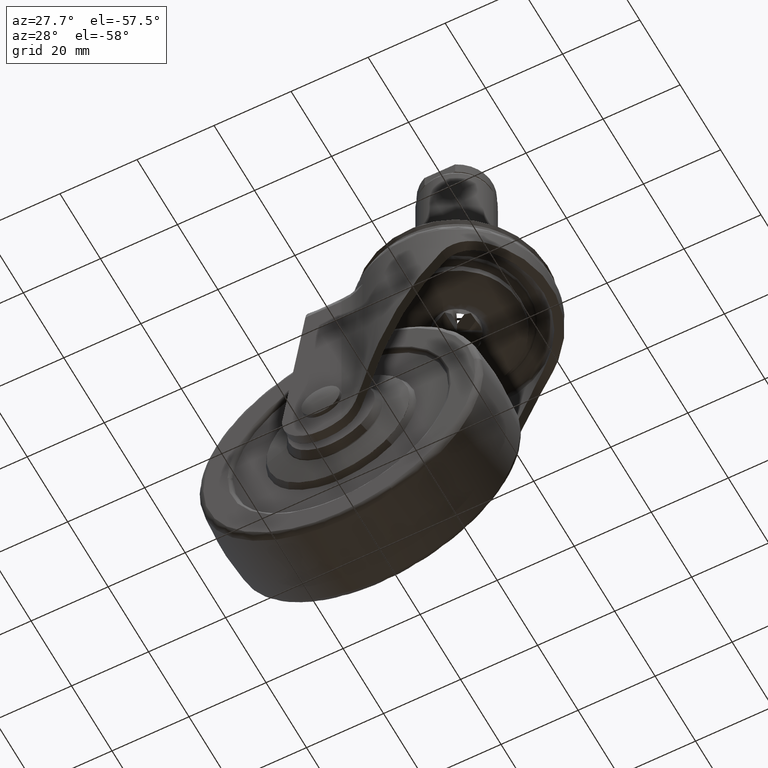
[diagram: clean part render]
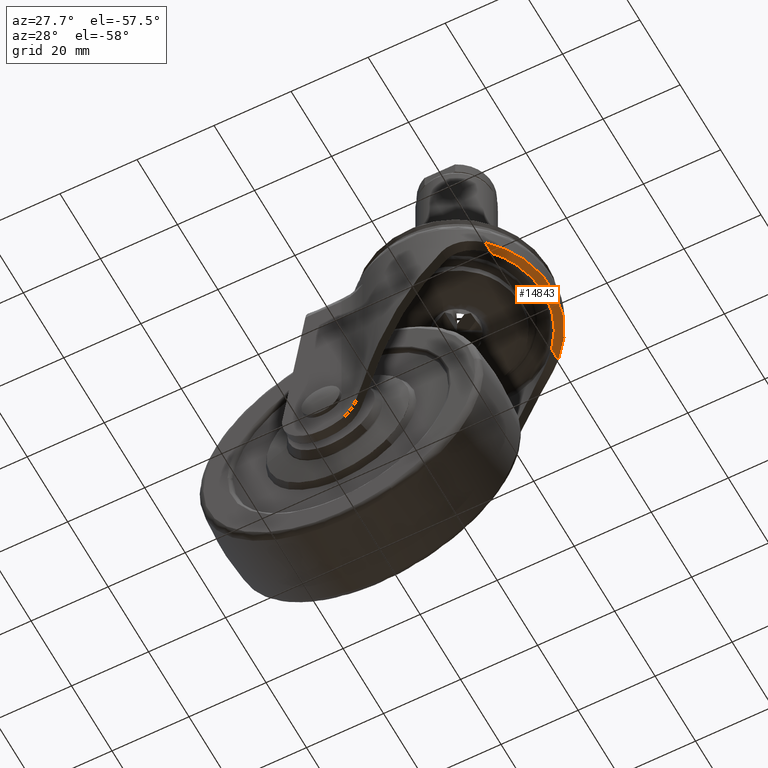
[diagram: same view with one face highlighted and labeled with its STEP entity id]
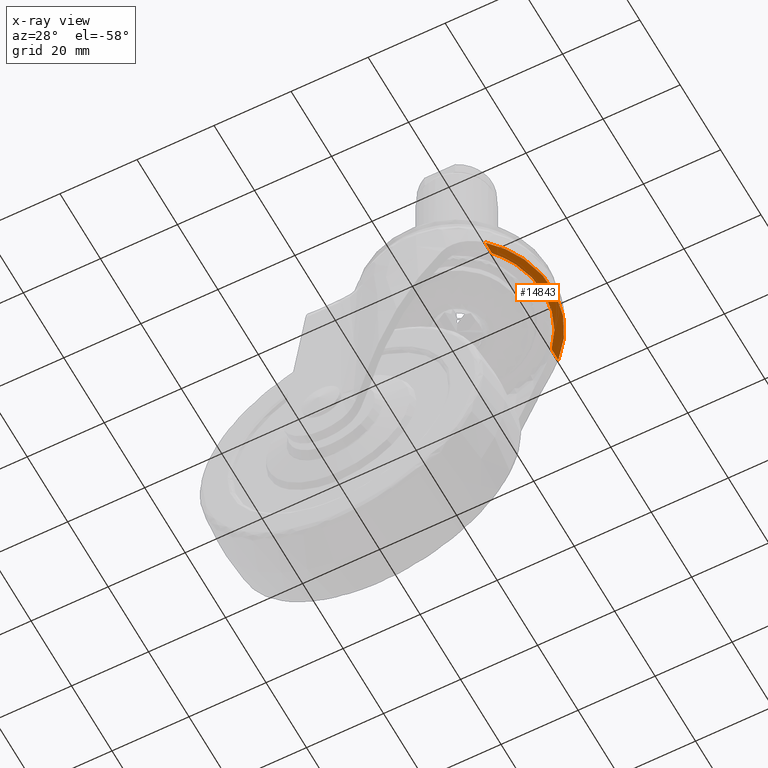
[diagram: x-ray of the same camera — body ghosted, the highlighted face saturated]
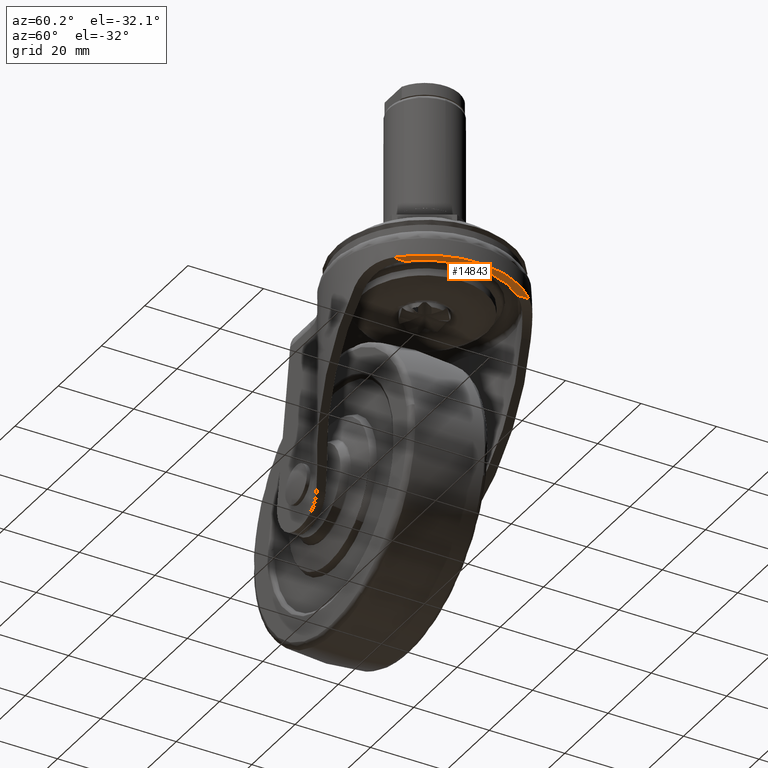
[diagram: same view with one face highlighted and labeled with its STEP entity id]
A machine part, auxiliary view. The second image highlights one B-rep face of the part: STEP entity #14843.
The next image is the same camera in x-ray: the body ghosted, the highlighted face saturated — about 0% of this face is hidden behind the body in this view.
A second angle (auxiliary view) of the same face is appended — the face is thin or edge-on in the first view.
In plain terms, the highlighted face is a freeform B-spline surface patch.
Its self-contained STEP definition (entity closure, byte-faithful):
#14275=CARTESIAN_POINT('',(16.894269843855700,14.784573456711000,-16.300000000000001));
#14276=VERTEX_POINT('',#14275);
#14312=CARTESIAN_POINT('',(16.894269843855700,-14.784573456711000,-16.300000000000001));
#14313=VERTEX_POINT('',#14312);
#14314=CARTESIAN_POINT('',(16.894269843855700,14.784573456711000,-16.300000000000001));
#14315=CARTESIAN_POINT('',(17.863191239751920,13.677711472528991,-16.300000000000011));
#14316=CARTESIAN_POINT('',(19.164550962032639,11.856597726699940,-16.300000000000018));
#14317=CARTESIAN_POINT('',(20.579810062688711,9.082612827309850,-16.300000000000001));
#14318=CARTESIAN_POINT('',(21.430279325733519,6.838516905707254,-16.299999999999962));
#14319=CARTESIAN_POINT('',(22.145918560788520,4.067781750908366,-16.300000000000001));
#14320=CARTESIAN_POINT('',(22.496413973413070,1.179343114190854,-16.300000000000079));
#14321=CARTESIAN_POINT('',(22.428236112413249,-1.851783298216447,-16.299999999999841));
#14322=CARTESIAN_POINT('',(22.049663127835888,-4.477077573077162,-16.300000000000271));
#14323=CARTESIAN_POINT('',(21.318319697542101,-7.244589541546005,-16.299999999999851));
#14324=CARTESIAN_POINT('',(19.842999336352872,-10.830842995806981,-16.300000000000171));
#14325=CARTESIAN_POINT('',(18.140226685823979,-13.361590730938140,-16.299999999999962));
#14326=CARTESIAN_POINT('',(16.894269843855700,-14.784573456711000,-16.300000000000001));
#14327=B_SPLINE_CURVE_WITH_KNOTS('',3,(#14314,#14315,#14316,#14317,#14318,#14319,#14320,#14321,#14322,#14323,#14324,#14325,#14326),.UNSPECIFIED.,.F.,.U.,(4,1,1,1,1,1,1,1,1,1,4),(0.000000066025017,4.413060293488904,6.682660923698066,9.330521691634637,11.600116713895080,15.256666113090160,18.030558798156541,20.678438966102341,23.200207040529950,26.604592002985878,32.278552403217432),.UNSPECIFIED.);
#14328=EDGE_CURVE('',#14276,#14313,#14327,.T.);
#14553=CARTESIAN_POINT('',(16.894269843855700,-18.087111773218052,-16.300000000000001));
#14554=VERTEX_POINT('',#14553);
#14591=CARTESIAN_POINT('',(16.894269843855700,18.087111773218052,-16.300000000000001));
#14592=VERTEX_POINT('',#14591);
#14593=CARTESIAN_POINT('',(16.894269843855700,18.087111773218052,-16.300000000000001));
#14594=CARTESIAN_POINT('',(18.052361543490751,17.005612888718129,-16.299999999999962));
#14595=CARTESIAN_POINT('',(19.808441630245490,15.016885250790621,-16.300000000000090));
#14596=CARTESIAN_POINT('',(21.730448935951021,11.974054993827190,-16.299999999999901));
#14597=CARTESIAN_POINT('',(23.087592375417991,9.104424368961912,-16.300000000000001));
#14598=CARTESIAN_POINT('',(23.969922499235029,6.384702756458355,-16.300000000000189));
#14599=CARTESIAN_POINT('',(24.543248811122002,3.533837962158309,-16.299999999999780));
#14600=CARTESIAN_POINT('',(24.783599632441572,0.952149092533863,-16.300000000000299));
#14601=CARTESIAN_POINT('',(24.722710426150211,-2.220514618652445,-16.299999999999891));
#14602=CARTESIAN_POINT('',(24.238280456105599,-5.416217875864833,-16.300000000000200));
#14603=CARTESIAN_POINT('',(23.301055059038891,-8.505726706213402,-16.299999999999649));
#14604=CARTESIAN_POINT('',(21.931707581073209,-11.658951360091670,-16.300000000000530));
#14605=CARTESIAN_POINT('',(19.923051082000281,-14.907387967130919,-16.299999999999191));
#14606=CARTESIAN_POINT('',(17.936512224172748,-17.113746412638960,-16.300000000000779));
#14607=CARTESIAN_POINT('',(16.894269843855700,-18.087111773218052,-16.300000000000001));
#14608=B_SPLINE_CURVE_WITH_KNOTS('',3,(#14593,#14594,#14595,#14596,#14597,#14598,#14599,#14600,#14601,#14602,#14603,#14604,#14605,#14606,#14607),.UNSPECIFIED.,.F.,.U.,(4,1,1,1,1,1,1,1,1,1,1,1,4),(0.000000081097994,4.753638056112152,7.922734114645081,10.774928220081700,14.260958556517220,16.479326587444611,19.489993801098159,22.025172256455040,25.986579428526451,29.155680224391929,31.690964355620451,36.286186005452556,40.564432178781828),.UNSPECIFIED.);
#14609=EDGE_CURVE('',#14592,#14554,#14608,.T.);
#14824=CARTESIAN_POINT('',(25.142333588804920,-19.894014848405320,-16.300000000000001));
#14825=CARTESIAN_POINT('',(16.501879375688489,-19.894014848405320,-16.300000000000001));
#14826=CARTESIAN_POINT('',(25.142333588804920,19.894015171828080,-16.300000000000001));
#14827=CARTESIAN_POINT('',(16.501879375688489,19.894015171828080,-16.300000000000001));
#14828=B_SPLINE_SURFACE_WITH_KNOTS('',1,1,((#14824,#14826),(#14825,#14827)),.UNSPECIFIED.,.F.,.F.,.U.,(2,2),(2,2),(0.0,8.640454213116428),(0.0,39.788030020233407),.UNSPECIFIED.);
#14829=CARTESIAN_POINT('',(16.894269843855700,-14.784573456711000,-16.300000000000001));
#14830=CARTESIAN_POINT('',(16.894269843855700,-18.087111773218052,-16.300000000000001));
#14831=QUASI_UNIFORM_CURVE('',1,(#14829,#14830),.UNSPECIFIED.,.F.,.U.);
#14832=EDGE_CURVE('',#14313,#14554,#14831,.T.);
#14833=ORIENTED_EDGE('',*,*,#14832,.F.);
#14834=ORIENTED_EDGE('',*,*,#14328,.F.);
#14835=CARTESIAN_POINT('',(16.894269843855700,18.087111773218052,-16.300000000000001));
#14836=CARTESIAN_POINT('',(16.894269843855700,14.784573456711000,-16.300000000000001));
#14837=QUASI_UNIFORM_CURVE('',1,(#14835,#14836),.UNSPECIFIED.,.F.,.U.);
#14838=EDGE_CURVE('',#14592,#14276,#14837,.T.);
#14839=ORIENTED_EDGE('',*,*,#14838,.F.);
#14840=ORIENTED_EDGE('',*,*,#14609,.T.);
#14841=EDGE_LOOP('',(#14833,#14834,#14839,#14840));
#14842=FACE_OUTER_BOUND('',#14841,.T.);
#14843=ADVANCED_FACE('',(#14842),#14828,.T.);